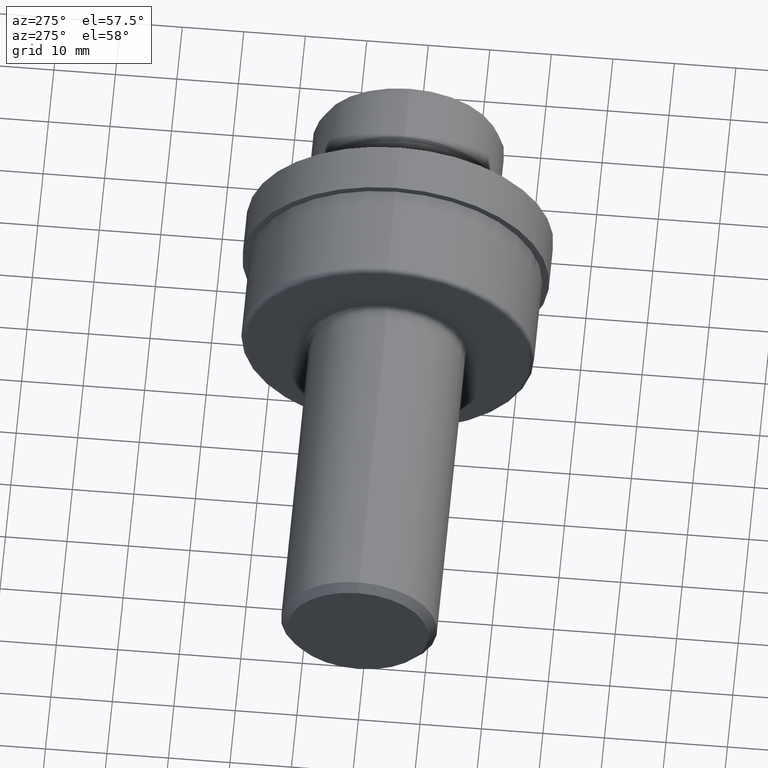
[diagram: clean part render]
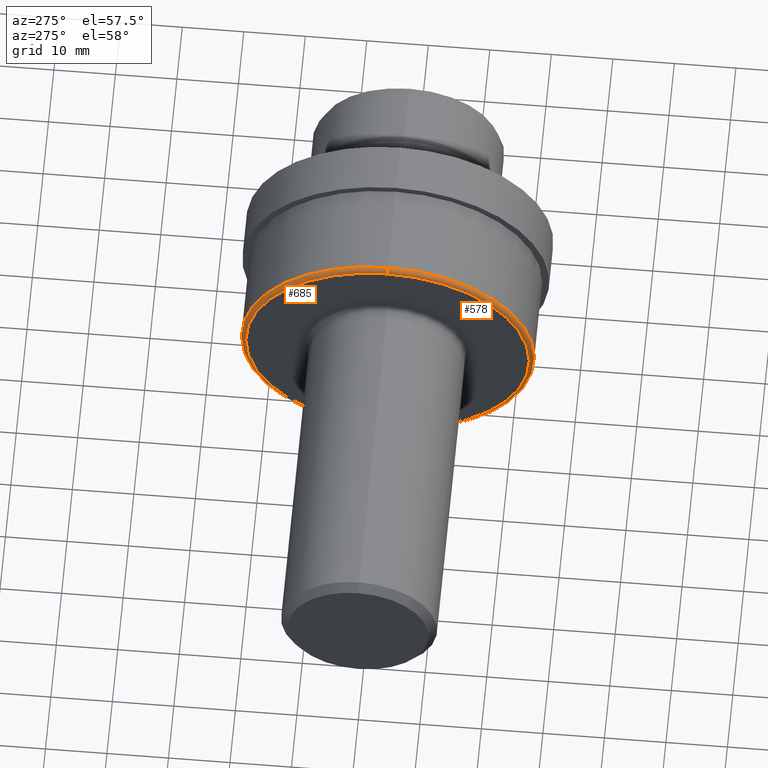
[diagram: same view with one multi-face feature highlighted, each face labeled with its STEP entity id]
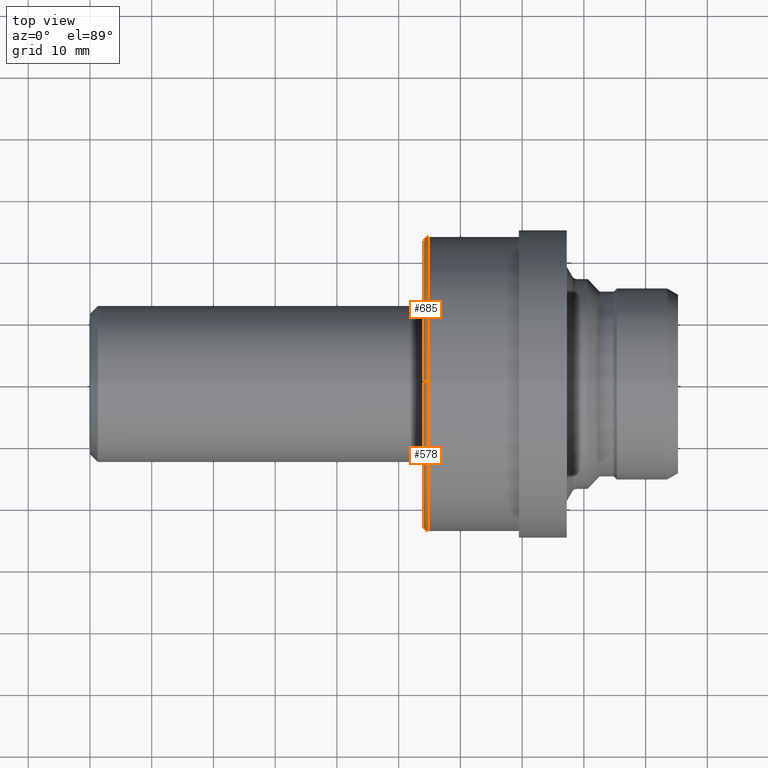
[diagram: same view with one multi-face feature highlighted, each face labeled with its STEP entity id]
A machine part, auxiliary view. The highlighted faces form ONE feature: a constant-radius fillet chain: 2 tangent blend faces with common blend radius 0.762 mm. The faces share edges in the B-rep.
A second angle (top view) of the same feature is appended — it is thin or edge-on in the first view.
Their STEP definitions:
[1] entity #685 (Torus):
#8 = EDGE_CURVE ( 'NONE', #18, #400, #462, .T. ) ;
#18 = VERTEX_POINT ( 'NONE', #114 ) ;
#55 = ORIENTED_EDGE ( 'NONE', *, *, #8, .F. ) ;
#59 = DIRECTION ( 'NONE',  ( 0.0000000000000000000, 0.0000000000000000000, -1.000000000000000000 ) ) ;
#86 = VERTEX_POINT ( 'NONE', #326 ) ;
#102 = FACE_OUTER_BOUND ( 'NONE', #799, .T. ) ;
#109 = CIRCLE ( 'NONE', #489, 0.9075000000000000844 ) ;
#114 = CARTESIAN_POINT ( 'NONE',  ( 2.159999999999999698, 0.0000000000000000000, 0.9375000000000000000 ) ) ;
#177 = EDGE_CURVE ( 'NONE', #400, #86, #109, .T. ) ;
#229 = CIRCLE ( 'NONE', #317, 0.9375000000000000000 ) ;
#251 = TOROIDAL_SURFACE ( 'NONE', #808, 0.9075000000000000844, 0.02999999999999995379 ) ;
#262 = DIRECTION ( 'NONE',  ( 0.0000000000000000000, -1.224646799147354933E-16, 1.000000000000000000 ) ) ;
#286 = DIRECTION ( 'NONE',  ( -1.000000000000000000, -0.0000000000000000000, -0.0000000000000000000 ) ) ;
#317 = AXIS2_PLACEMENT_3D ( 'NONE', #590, #581, #432 ) ;
#326 = CARTESIAN_POINT ( 'NONE',  ( 2.129999999999999893, 1.129736672213433359E-16, -0.9075000000000000844 ) ) ;
#353 = VERTEX_POINT ( 'NONE', #511 ) ;
#400 = VERTEX_POINT ( 'NONE', #793 ) ;
#415 = CIRCLE ( 'NONE', #539, 0.02999999999999995379 ) ;
#429 = AXIS2_PLACEMENT_3D ( 'NONE', #751, #881, #59 ) ;
#432 = DIRECTION ( 'NONE',  ( 0.0000000000000000000, 0.0000000000000000000, 1.000000000000000000 ) ) ;
#438 = DIRECTION ( 'NONE',  ( 0.0000000000000000000, 0.0000000000000000000, 1.000000000000000000 ) ) ;
#462 = CIRCLE ( 'NONE', #429, 0.02999999999999995379 ) ;
#489 = AXIS2_PLACEMENT_3D ( 'NONE', #781, #286, #849 ) ;
#511 = CARTESIAN_POINT ( 'NONE',  ( 2.159999999999999698, 1.148106374200643740E-16, -0.9375000000000000000 ) ) ;
#514 = EDGE_CURVE ( 'NONE', #18, #353, #229, .T. ) ;
#539 = AXIS2_PLACEMENT_3D ( 'NONE', #619, #673, #262 ) ;
#581 = DIRECTION ( 'NONE',  ( -1.000000000000000000, -0.0000000000000000000, -0.0000000000000000000 ) ) ;
#590 = CARTESIAN_POINT ( 'NONE',  ( 2.159999999999999698, 0.0000000000000000000, 0.0000000000000000000 ) ) ;
#619 = CARTESIAN_POINT ( 'NONE',  ( 2.159999999999999698, 1.111366970226223225E-16, -0.9075000000000000844 ) ) ;
#633 = DIRECTION ( 'NONE',  ( -1.000000000000000000, -0.0000000000000000000, -0.0000000000000000000 ) ) ;
#673 = DIRECTION ( 'NONE',  ( -0.0000000000000000000, 1.000000000000000000, 1.224646799147353207E-16 ) ) ;
#681 = ORIENTED_EDGE ( 'NONE', *, *, #864, .T. ) ;
#685 = ADVANCED_FACE ( 'NONE', ( #102 ), #251, .T. ) ;
#751 = CARTESIAN_POINT ( 'NONE',  ( 2.159999999999999698, 0.0000000000000000000, 0.9075000000000000844 ) ) ;
#781 = CARTESIAN_POINT ( 'NONE',  ( 2.129999999999999893, 0.0000000000000000000, 0.0000000000000000000 ) ) ;
#790 = CARTESIAN_POINT ( 'NONE',  ( 2.159999999999999698, 0.0000000000000000000, 0.0000000000000000000 ) ) ;
#793 = CARTESIAN_POINT ( 'NONE',  ( 2.129999999999999893, 0.0000000000000000000, 0.9075000000000000844 ) ) ;
#799 = EDGE_LOOP ( 'NONE', ( #841, #681, #832, #55 ) ) ;
#808 = AXIS2_PLACEMENT_3D ( 'NONE', #790, #633, #438 ) ;
#832 = ORIENTED_EDGE ( 'NONE', *, *, #177, .F. ) ;
#841 = ORIENTED_EDGE ( 'NONE', *, *, #514, .T. ) ;
#849 = DIRECTION ( 'NONE',  ( 0.0000000000000000000, 0.0000000000000000000, 1.000000000000000000 ) ) ;
#864 = EDGE_CURVE ( 'NONE', #353, #86, #415, .T. ) ;
#881 = DIRECTION ( 'NONE',  ( 0.0000000000000000000, -1.000000000000000000, 0.0000000000000000000 ) ) ;
[2] entity #578 (Torus):
#8 = EDGE_CURVE ( 'NONE', #18, #400, #462, .T. ) ;
#18 = VERTEX_POINT ( 'NONE', #114 ) ;
#59 = DIRECTION ( 'NONE',  ( 0.0000000000000000000, 0.0000000000000000000, -1.000000000000000000 ) ) ;
#86 = VERTEX_POINT ( 'NONE', #326 ) ;
#90 = DIRECTION ( 'NONE',  ( 0.0000000000000000000, 0.0000000000000000000, 1.000000000000000000 ) ) ;
#114 = CARTESIAN_POINT ( 'NONE',  ( 2.159999999999999698, 0.0000000000000000000, 0.9375000000000000000 ) ) ;
#138 = AXIS2_PLACEMENT_3D ( 'NONE', #220, #519, #90 ) ;
#143 = AXIS2_PLACEMENT_3D ( 'NONE', #270, #452, #273 ) ;
#166 = CIRCLE ( 'NONE', #138, 0.9075000000000000844 ) ;
#169 = ORIENTED_EDGE ( 'NONE', *, *, #8, .T. ) ;
#194 = CIRCLE ( 'NONE', #524, 0.9375000000000000000 ) ;
#220 = CARTESIAN_POINT ( 'NONE',  ( 2.129999999999999893, 0.0000000000000000000, 0.0000000000000000000 ) ) ;
#262 = DIRECTION ( 'NONE',  ( 0.0000000000000000000, -1.224646799147354933E-16, 1.000000000000000000 ) ) ;
#270 = CARTESIAN_POINT ( 'NONE',  ( 2.159999999999999698, 0.0000000000000000000, 0.0000000000000000000 ) ) ;
#273 = DIRECTION ( 'NONE',  ( 0.0000000000000000000, 0.0000000000000000000, 1.000000000000000000 ) ) ;
#298 = CARTESIAN_POINT ( 'NONE',  ( 2.159999999999999698, 0.0000000000000000000, 0.0000000000000000000 ) ) ;
#316 = ORIENTED_EDGE ( 'NONE', *, *, #593, .F. ) ;
#326 = CARTESIAN_POINT ( 'NONE',  ( 2.129999999999999893, 1.129736672213433359E-16, -0.9075000000000000844 ) ) ;
#353 = VERTEX_POINT ( 'NONE', #511 ) ;
#371 = FACE_OUTER_BOUND ( 'NONE', #674, .T. ) ;
#400 = VERTEX_POINT ( 'NONE', #793 ) ;
#415 = CIRCLE ( 'NONE', #539, 0.02999999999999995379 ) ;
#429 = AXIS2_PLACEMENT_3D ( 'NONE', #751, #881, #59 ) ;
#452 = DIRECTION ( 'NONE',  ( -1.000000000000000000, -0.0000000000000000000, -0.0000000000000000000 ) ) ;
#462 = CIRCLE ( 'NONE', #429, 0.02999999999999995379 ) ;
#511 = CARTESIAN_POINT ( 'NONE',  ( 2.159999999999999698, 1.148106374200643740E-16, -0.9375000000000000000 ) ) ;
#519 = DIRECTION ( 'NONE',  ( -1.000000000000000000, -0.0000000000000000000, -0.0000000000000000000 ) ) ;
#524 = AXIS2_PLACEMENT_3D ( 'NONE', #298, #728, #724 ) ;
#538 = ORIENTED_EDGE ( 'NONE', *, *, #708, .T. ) ;
#539 = AXIS2_PLACEMENT_3D ( 'NONE', #619, #673, #262 ) ;
#578 = ADVANCED_FACE ( 'NONE', ( #371 ), #788, .T. ) ;
#593 = EDGE_CURVE ( 'NONE', #86, #400, #166, .T. ) ;
#619 = CARTESIAN_POINT ( 'NONE',  ( 2.159999999999999698, 1.111366970226223225E-16, -0.9075000000000000844 ) ) ;
#673 = DIRECTION ( 'NONE',  ( -0.0000000000000000000, 1.000000000000000000, 1.224646799147353207E-16 ) ) ;
#674 = EDGE_LOOP ( 'NONE', ( #868, #538, #169, #316 ) ) ;
#708 = EDGE_CURVE ( 'NONE', #353, #18, #194, .T. ) ;
#724 = DIRECTION ( 'NONE',  ( 0.0000000000000000000, 0.0000000000000000000, 1.000000000000000000 ) ) ;
#728 = DIRECTION ( 'NONE',  ( -1.000000000000000000, -0.0000000000000000000, -0.0000000000000000000 ) ) ;
#751 = CARTESIAN_POINT ( 'NONE',  ( 2.159999999999999698, 0.0000000000000000000, 0.9075000000000000844 ) ) ;
#788 = TOROIDAL_SURFACE ( 'NONE', #143, 0.9075000000000000844, 0.02999999999999995379 ) ;
#793 = CARTESIAN_POINT ( 'NONE',  ( 2.129999999999999893, 0.0000000000000000000, 0.9075000000000000844 ) ) ;
#864 = EDGE_CURVE ( 'NONE', #353, #86, #415, .T. ) ;
#868 = ORIENTED_EDGE ( 'NONE', *, *, #864, .F. ) ;
#881 = DIRECTION ( 'NONE',  ( 0.0000000000000000000, -1.000000000000000000, 0.0000000000000000000 ) ) ;